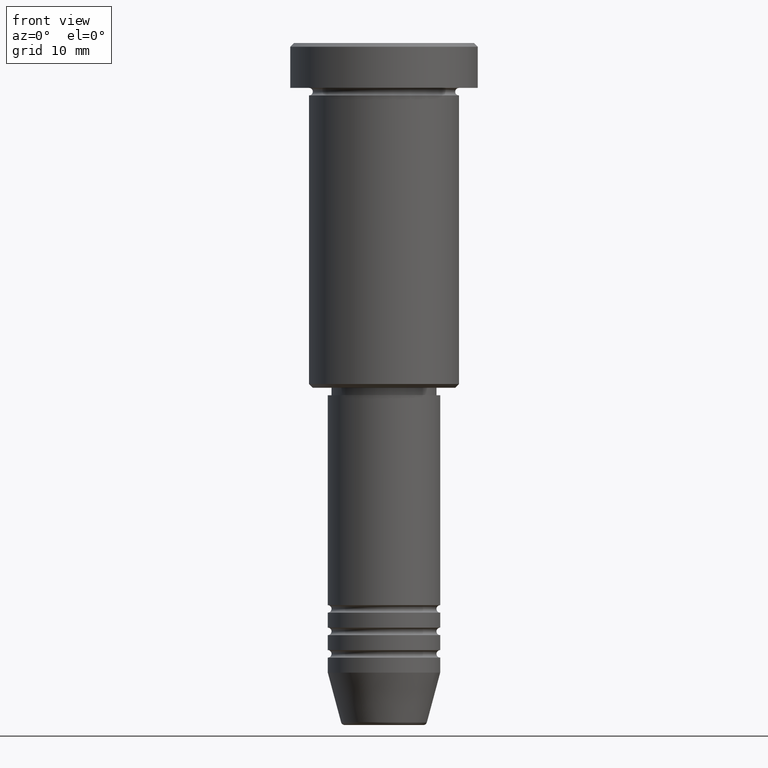
[diagram: clean part render]
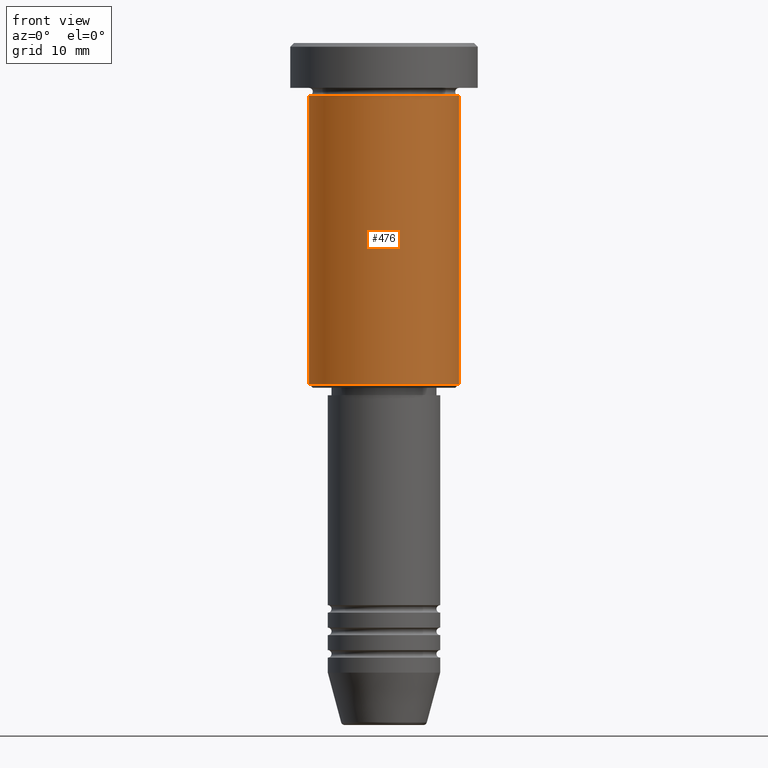
[diagram: same view with one face highlighted and labeled with its STEP entity id]
A machine part, front view. The second image highlights one B-rep face of the part: STEP entity #476.
In plain terms, the highlighted cylindrical surface (partial cylindrical patch) has radius 10 mm, axis along (-0, -0, 1).
Its self-contained STEP definition (entity closure, byte-faithful):
#14 = VECTOR ( 'NONE', #560, 1000.000000000000000 ) ;
#22 = LINE ( 'NONE', #479, #14 ) ;
#53 = DIRECTION ( 'NONE',  ( -0.000000000000000000, -0.000000000000000000, 1.000000000000000000 ) ) ;
#138 = AXIS2_PLACEMENT_3D ( 'NONE', #1064, #1165, #710 ) ;
#146 = EDGE_LOOP ( 'NONE', ( #747, #251, #890, #720 ) ) ;
#153 = EDGE_CURVE ( 'NONE', #333, #391, #1174, .T. ) ;
#172 = CARTESIAN_POINT ( 'NONE',  ( 0.000000000000000000, 0.000000000000000000, -6.999999999999996447 ) ) ;
#251 = ORIENTED_EDGE ( 'NONE', *, *, #773, .T. ) ;
#333 = VERTEX_POINT ( 'NONE', #648 ) ;
#347 = CARTESIAN_POINT ( 'NONE',  ( 10.00000000000000000, 0.000000000000000000, -45.50000000000002132 ) ) ;
#391 = VERTEX_POINT ( 'NONE', #873 ) ;
#406 = AXIS2_PLACEMENT_3D ( 'NONE', #1181, #451, #526 ) ;
#423 = DIRECTION ( 'NONE',  ( 1.000000000000000000, 0.000000000000000000, 0.000000000000000000 ) ) ;
#424 = VECTOR ( 'NONE', #688, 1000.000000000000000 ) ;
#432 = CYLINDRICAL_SURFACE ( 'NONE', #138, 10.00000000000000000 ) ;
#451 = DIRECTION ( 'NONE',  ( -0.000000000000000000, -0.000000000000000000, 1.000000000000000000 ) ) ;
#454 = VERTEX_POINT ( 'NONE', #810 ) ;
#460 = EDGE_CURVE ( 'NONE', #492, #391, #510, .T. ) ;
#476 = ADVANCED_FACE ( 'NONE', ( #1051 ), #432, .T. ) ;
#479 = CARTESIAN_POINT ( 'NONE',  ( -10.00000000000000000, 1.224646799147353256E-15, 0.000000000000000000 ) ) ;
#492 = VERTEX_POINT ( 'NONE', #347 ) ;
#510 = LINE ( 'NONE', #1144, #424 ) ;
#526 = DIRECTION ( 'NONE',  ( -1.000000000000000000, 0.000000000000000000, 0.000000000000000000 ) ) ;
#560 = DIRECTION ( 'NONE',  ( -0.000000000000000000, -0.000000000000000000, 1.000000000000000000 ) ) ;
#648 = CARTESIAN_POINT ( 'NONE',  ( -10.00000000000000000, 1.224646799147353256E-15, -6.999999999999996447 ) ) ;
#672 = EDGE_CURVE ( 'NONE', #454, #333, #22, .T. ) ;
#688 = DIRECTION ( 'NONE',  ( -0.000000000000000000, -0.000000000000000000, 1.000000000000000000 ) ) ;
#710 = DIRECTION ( 'NONE',  ( 1.000000000000000000, 0.000000000000000000, 0.000000000000000000 ) ) ;
#720 = ORIENTED_EDGE ( 'NONE', *, *, #153, .F. ) ;
#747 = ORIENTED_EDGE ( 'NONE', *, *, #672, .F. ) ;
#773 = EDGE_CURVE ( 'NONE', #454, #492, #931, .T. ) ;
#810 = CARTESIAN_POINT ( 'NONE',  ( -10.00000000000000000, 1.224646799147353256E-15, -45.50000000000002132 ) ) ;
#873 = CARTESIAN_POINT ( 'NONE',  ( 10.00000000000000000, 0.000000000000000000, -6.999999999999996447 ) ) ;
#890 = ORIENTED_EDGE ( 'NONE', *, *, #460, .T. ) ;
#931 = CIRCLE ( 'NONE', #406, 10.00000000000000000 ) ;
#1051 = FACE_OUTER_BOUND ( 'NONE', #146, .T. ) ;
#1064 = CARTESIAN_POINT ( 'NONE',  ( 0.000000000000000000, 0.000000000000000000, 0.000000000000000000 ) ) ;
#1144 = CARTESIAN_POINT ( 'NONE',  ( 10.00000000000000000, 0.000000000000000000, 0.000000000000000000 ) ) ;
#1165 = DIRECTION ( 'NONE',  ( -0.000000000000000000, -0.000000000000000000, 1.000000000000000000 ) ) ;
#1172 = AXIS2_PLACEMENT_3D ( 'NONE', #172, #53, #423 ) ;
#1174 = CIRCLE ( 'NONE', #1172, 10.00000000000000000 ) ;
#1181 = CARTESIAN_POINT ( 'NONE',  ( 0.000000000000000000, 0.000000000000000000, -45.50000000000002132 ) ) ;